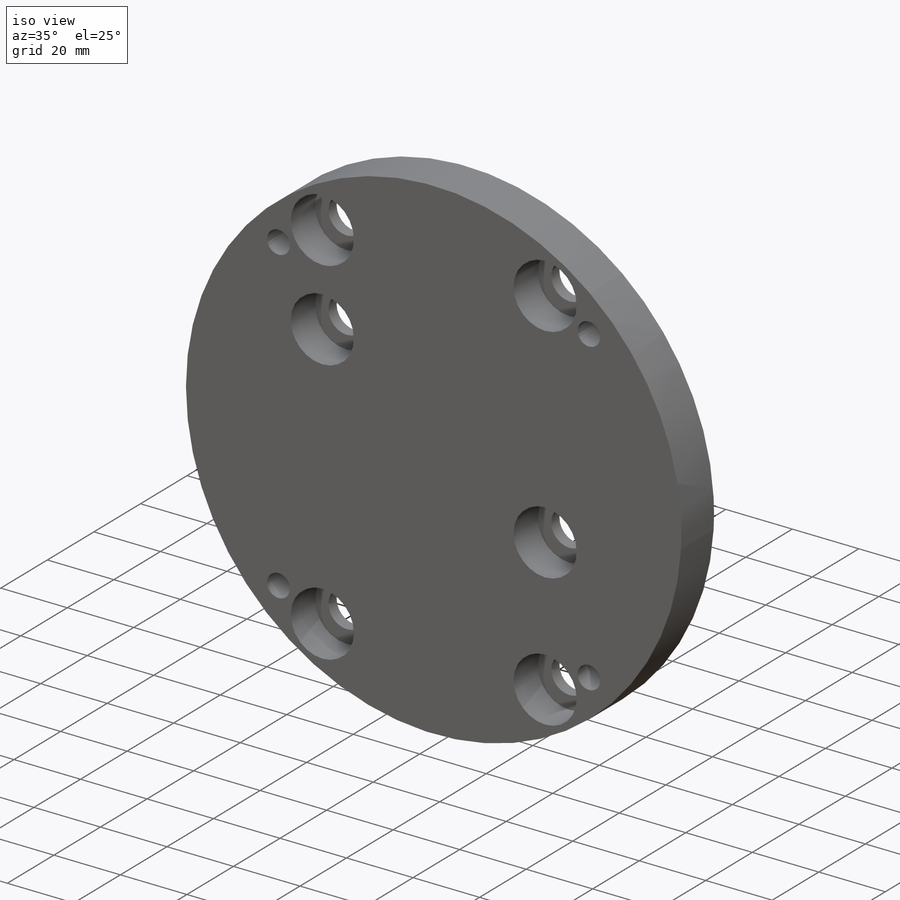
[diagram: iso view]
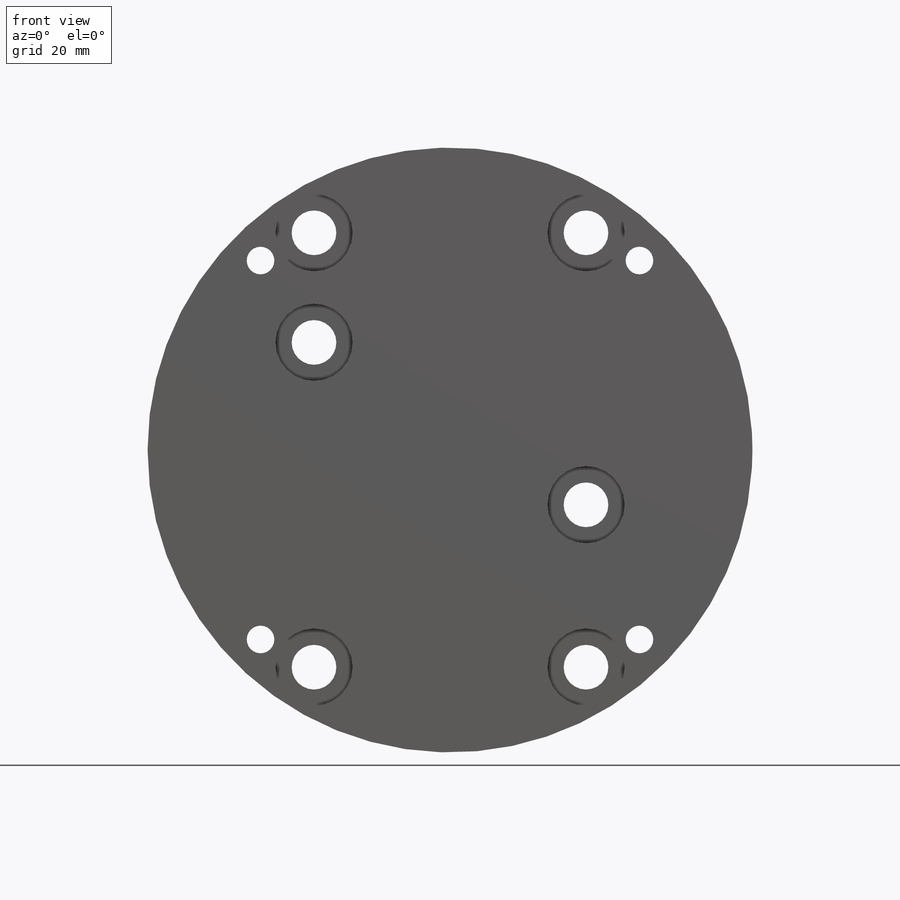
[diagram: front view]
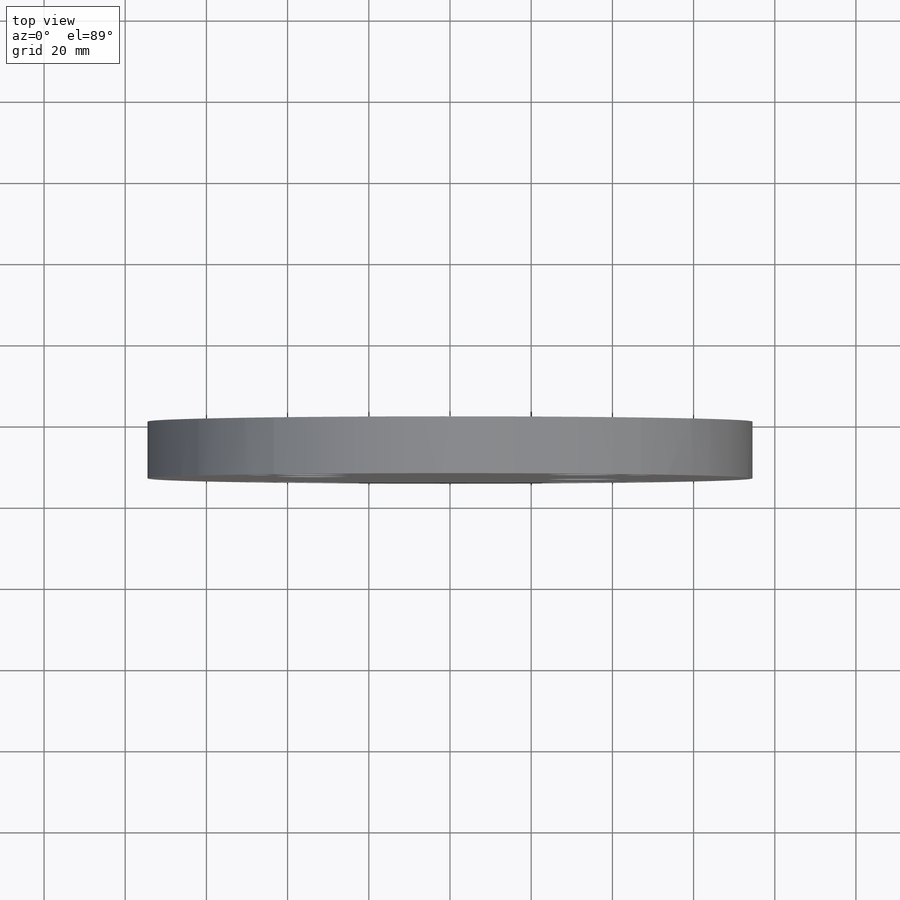
[diagram: top view]
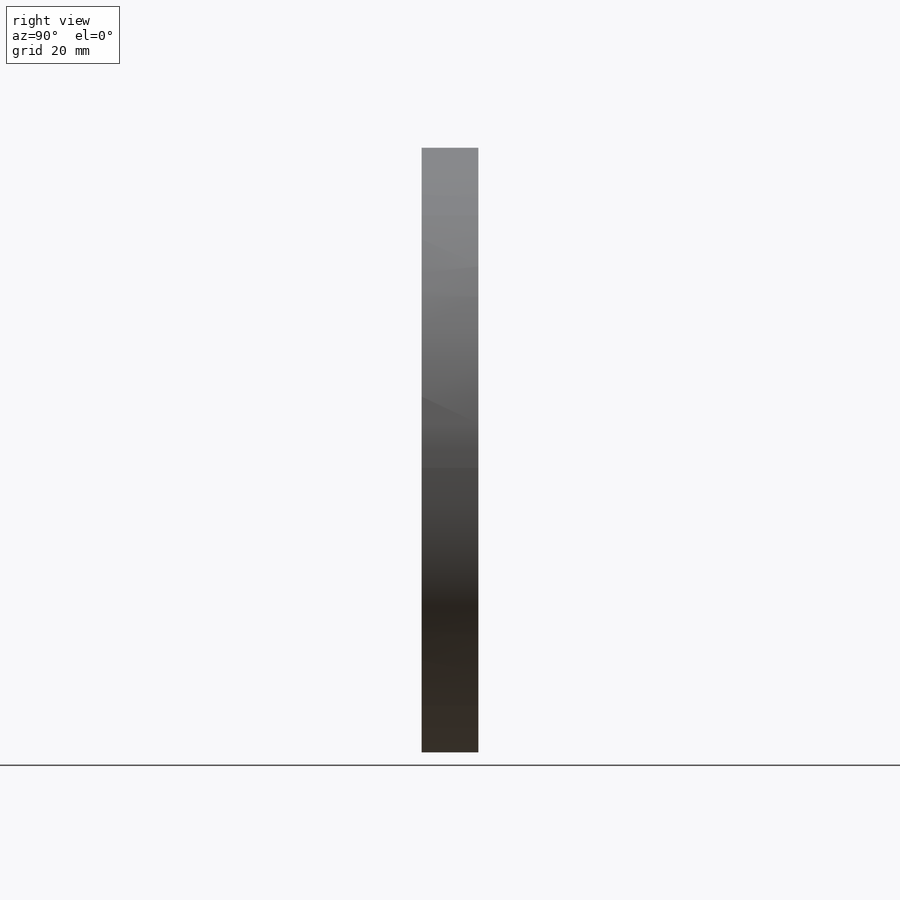
[diagram: right view]
SOLIDWORKS PART (.sldprt)
format: sldprt  version: not decoded by parser v0  size: 259,584 bytes
history: native  units: mm
features: sketch x5, plane x3, hole x2, material x1, extrude x1, pattern_circular x1 (+10 scaffold rows collapsed)
feature tree (23):
  scaffold x10  (default folders/planes/origin — collapsed)
  material  "材质 <未指定>"
  plane  "前视基准面"
  plane  "上视基准面"
  plane  "右视基准面"
  sketch  "草图1"  dims[D1=149.0mm]
  extrude  "凸台-拉伸1"  Depth=14mm
  hole  "M10 六角头螺栓的柱形沉头孔1"  [1 undecoded]
  sketch  "草图3"  dims[D1=33.5mm D2=33.5mm D3=33.5mm D4=53.5mm D5=27.0mm D6=53.5mm D7=33.5mm D8=13.5mm D9=40.0mm D10=33.5mm D11=33.5mm D12=53.5mm]
  sketch  "草图2"  dims[hole-wizard template sketch: 41 standard entries collapsed; hole parameters kept: c12.通孔孔直径=11.0mm c12.通孔孔深度=14.0mm c12.柱形沉头孔直径=19.0mm c12.柱形沉头孔深度=10.5mm]
  hole  "M8 螺纹孔的螺纹孔钻头1"  [1 undecoded]
  sketch  "草图7"  dims[c1.D1=132.0mm c1.D2=74.5mm c2.D2=45.0deg]
  sketch  "草图6"  dims[hole-wizard template sketch: 59 standard entries collapsed; hole parameters kept: c18.通孔孔直径=6.8mm c18.通孔孔深度=14.0mm]
  pattern_circular  "阵列(圆周)1"  Count=4 Angle=360deg
decode coverage: 7 of 9 modeling features carry decoded parameters
note: ~ marks probable driven/reference dimensions
note: 2 parameter values undecoded
note: suppression state not decoded; provenance and decode notes live in map.json
